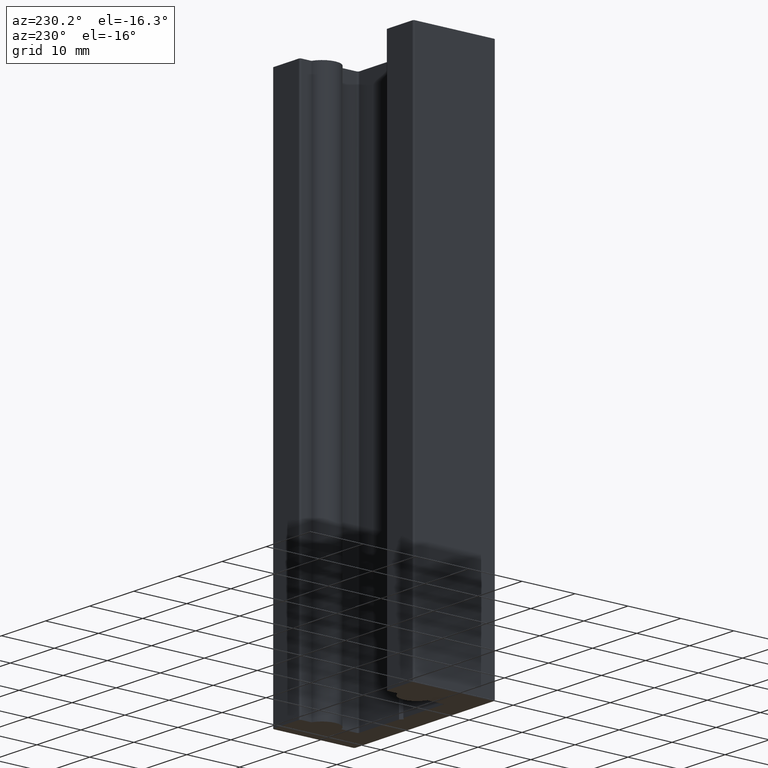
[diagram: clean part render]
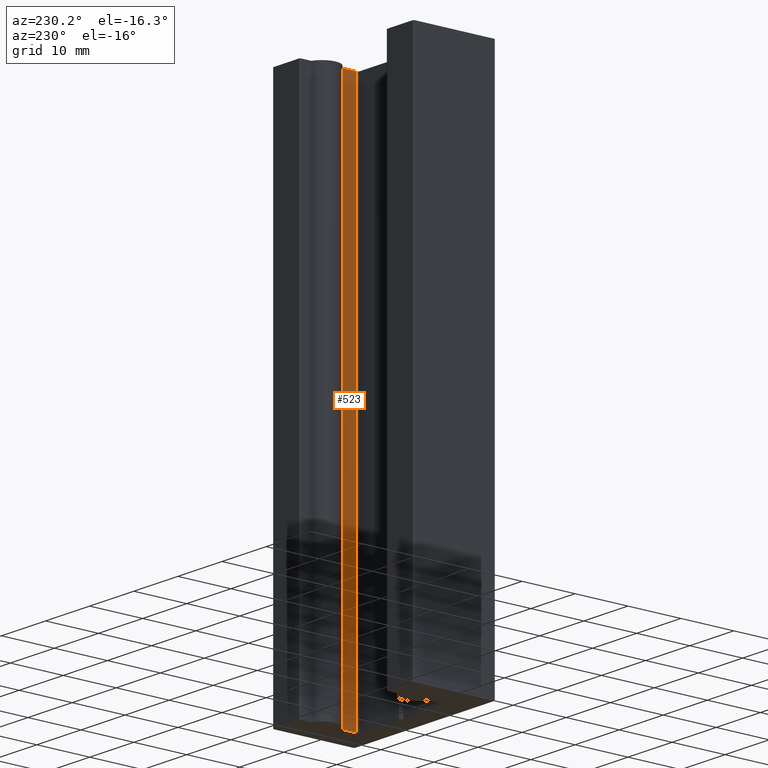
[diagram: same view with one face highlighted and labeled with its STEP entity id]
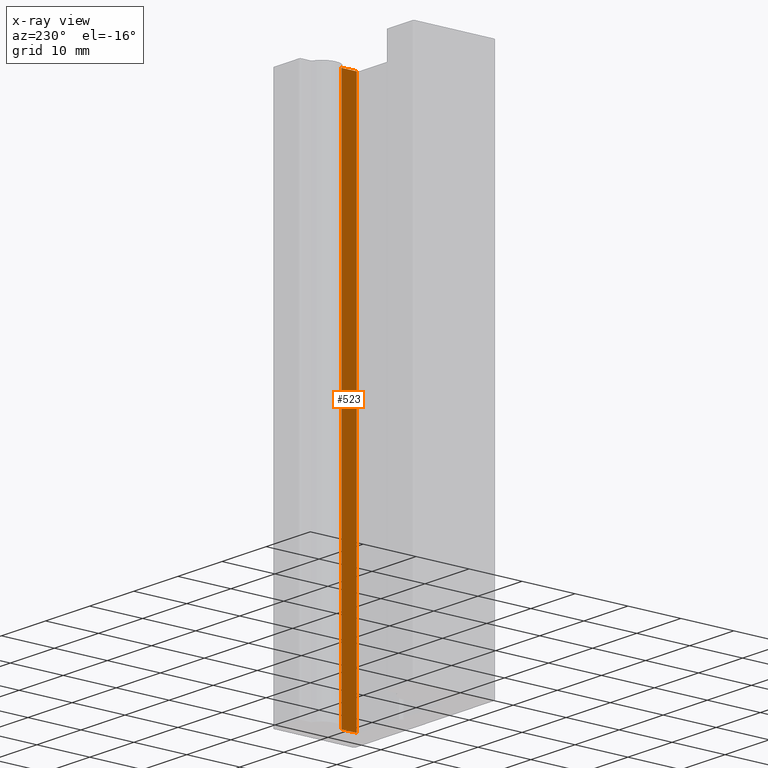
[diagram: x-ray of the same camera — body ghosted, the highlighted face saturated]
A machine part, auxiliary view. The second image highlights one B-rep face of the part: STEP entity #523.
The next image is the same camera in x-ray: the body ghosted, the highlighted face saturated — about 0% of this face is hidden behind the body in this view.
In plain terms, the highlighted planar face has unit normal (-1, 0, 0).
Its self-contained STEP definition (entity closure, byte-faithful):
#44=PLANE('',#636);
#70=FACE_OUTER_BOUND('',#98,.T.);
#98=EDGE_LOOP('',(#453,#454,#455,#456));
#120=LINE('',#868,#170);
#130=LINE('',#895,#180);
#151=LINE('',#948,#201);
#152=LINE('',#949,#202);
#170=VECTOR('',#695,10.);
#180=VECTOR('',#723,10.);
#201=VECTOR('',#784,10.);
#202=VECTOR('',#785,10.);
#250=VERTEX_POINT('',#865);
#251=VERTEX_POINT('',#867);
#259=VERTEX_POINT('',#893);
#271=VERTEX_POINT('',#947);
#300=EDGE_CURVE('',#251,#250,#120,.T.);
#314=EDGE_CURVE('',#259,#250,#130,.T.);
#340=EDGE_CURVE('',#259,#271,#151,.T.);
#341=EDGE_CURVE('',#251,#271,#152,.T.);
#453=ORIENTED_EDGE('',*,*,#314,.F.);
#454=ORIENTED_EDGE('',*,*,#340,.T.);
#455=ORIENTED_EDGE('',*,*,#341,.F.);
#456=ORIENTED_EDGE('',*,*,#300,.T.);
#523=ADVANCED_FACE('',(#70),#44,.T.);
#636=AXIS2_PLACEMENT_3D('',#946,#782,#783);
#695=DIRECTION('',(0.,-1.,0.));
#723=DIRECTION('',(0.,0.,-1.));
#782=DIRECTION('center_axis',(-1.,0.,0.));
#783=DIRECTION('ref_axis',(0.,0.,1.));
#784=DIRECTION('',(0.,1.,0.));
#785=DIRECTION('',(0.,0.,1.));
#865=CARTESIAN_POINT('',(9.75,4.8,-50.));
#867=CARTESIAN_POINT('',(9.75,7.67157287525381,-50.));
#868=CARTESIAN_POINT('',(9.75,7.67157287525381,-50.));
#893=CARTESIAN_POINT('',(9.75,4.8,50.));
#895=CARTESIAN_POINT('',(9.75,4.8,0.));
#946=CARTESIAN_POINT('Origin',(9.75,4.5,0.));
#947=CARTESIAN_POINT('',(9.75,7.67157287525381,50.));
#948=CARTESIAN_POINT('',(9.75,7.67157287525381,50.));
#949=CARTESIAN_POINT('',(9.75,7.67157287525381,0.));